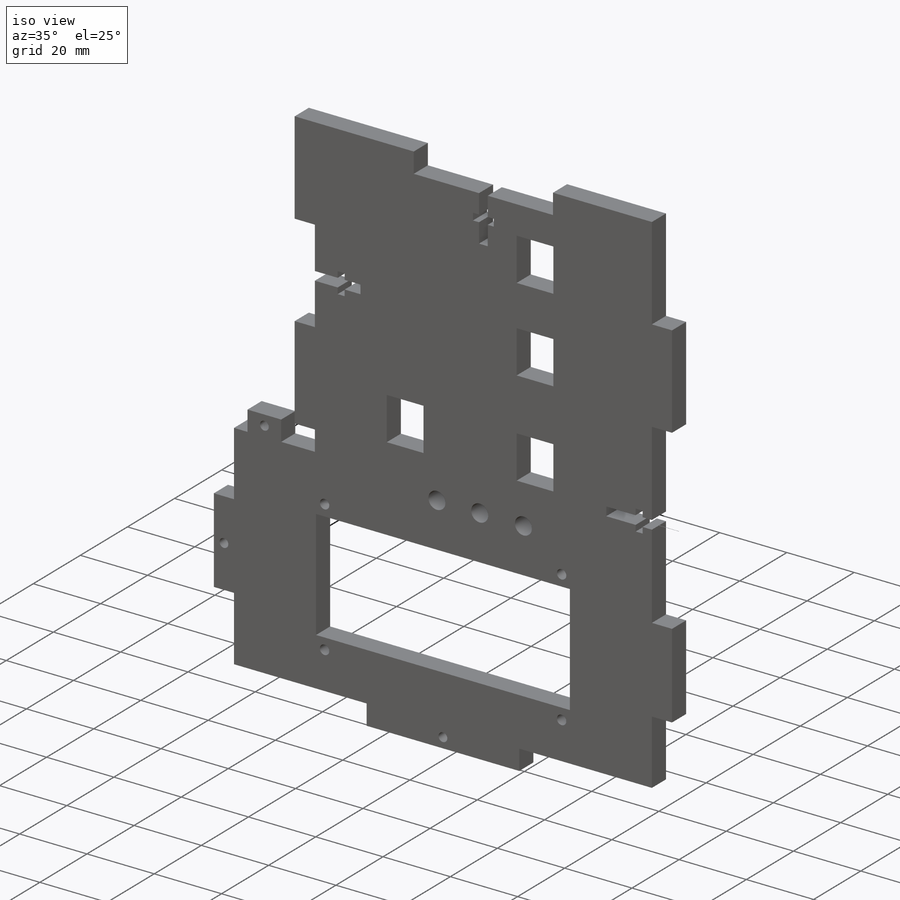
[diagram: iso view]
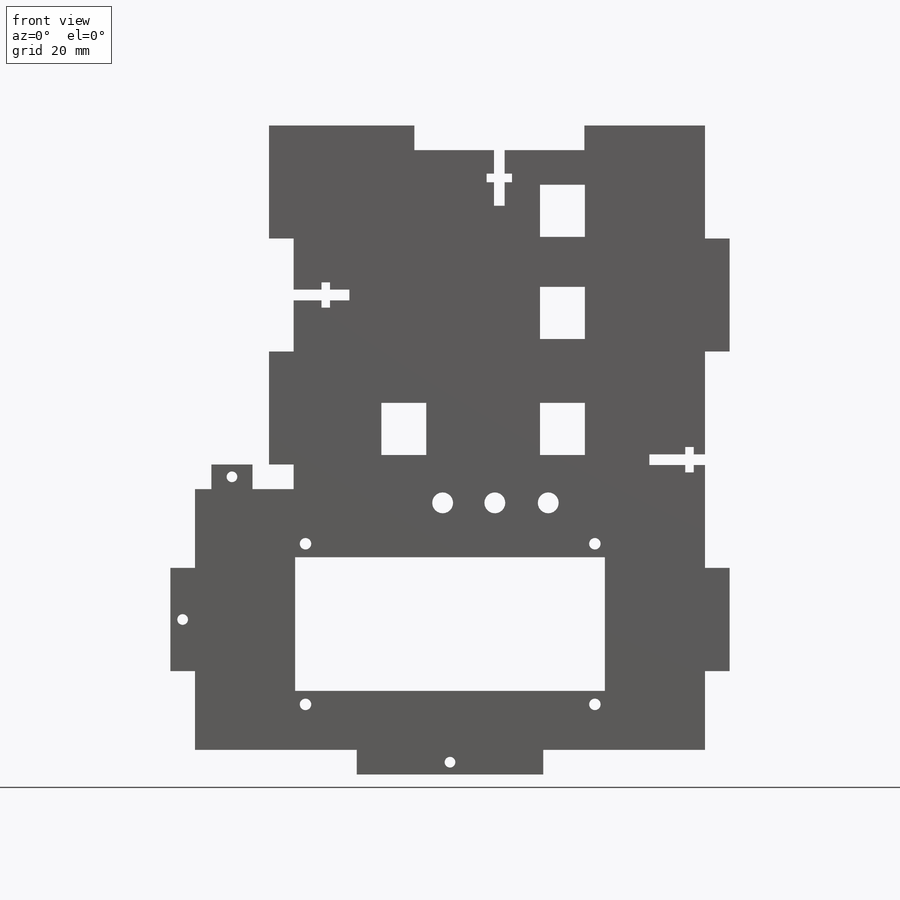
[diagram: front view]
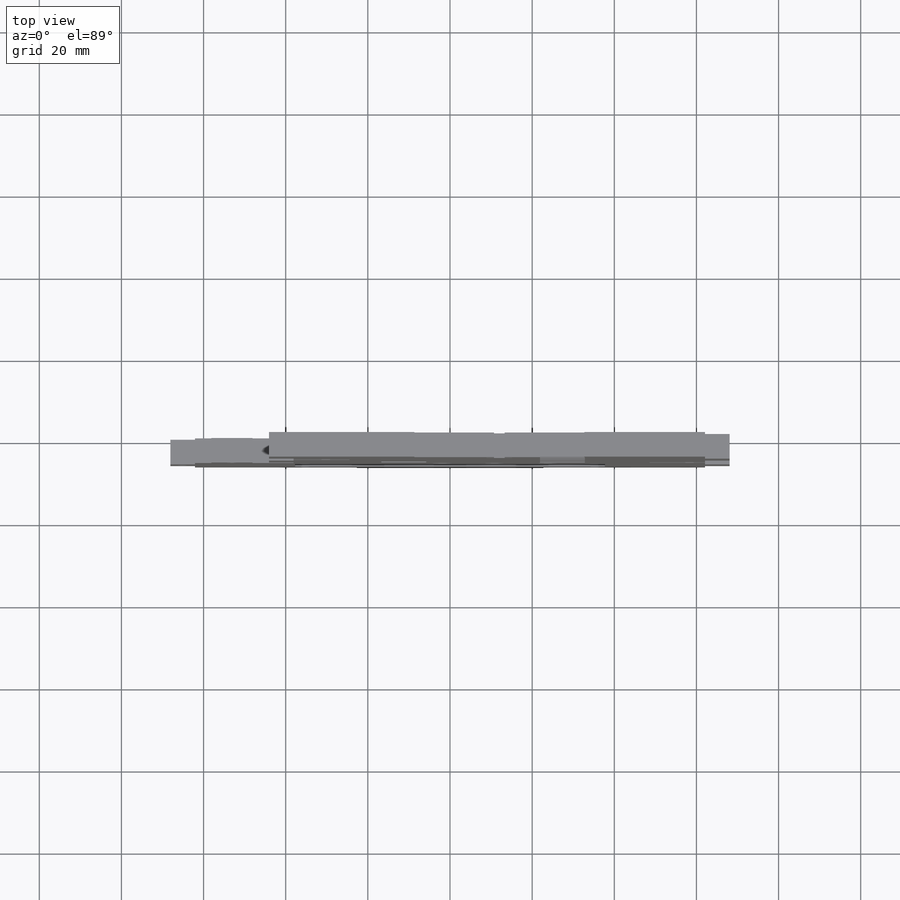
[diagram: top view]
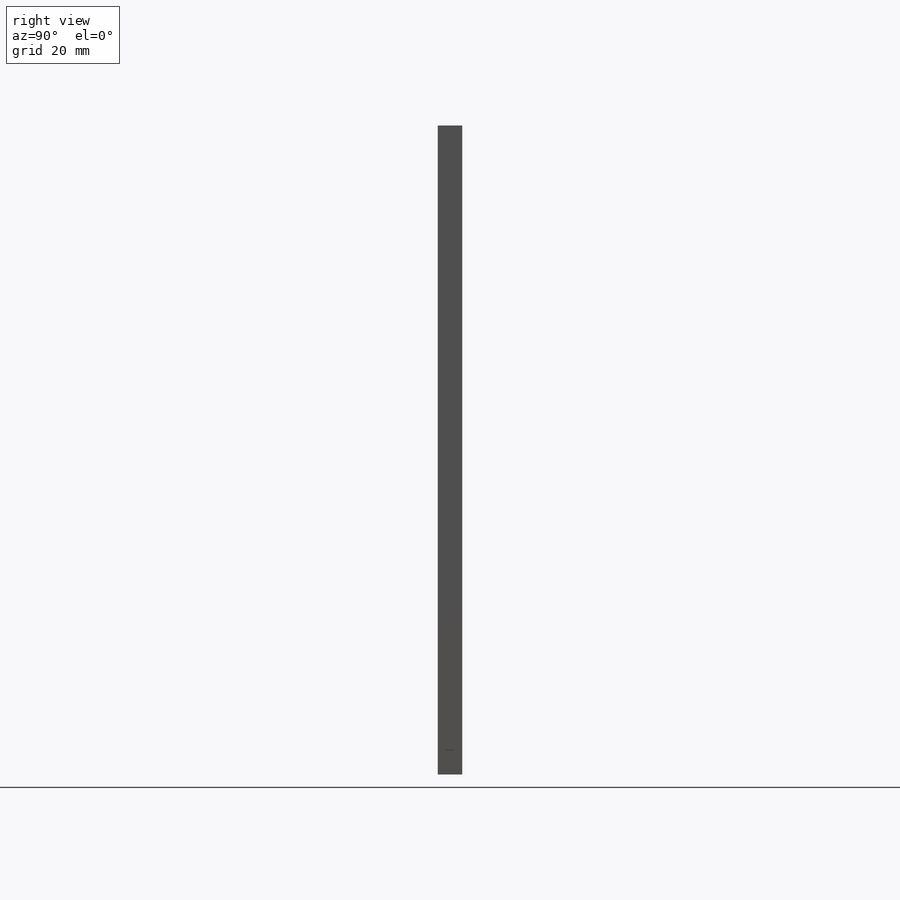
[diagram: right view]
SOLIDWORKS PART (.sldprt)
format: sldprt  version: not decoded by parser v0  size: 1,233,920 bytes
history: native  units: mm
features: sketch x9, cut_extrude x7, extrude x6, material x1 (+11 scaffold rows collapsed)
feature tree (34):
  scaffold x11  (default folders/planes/origin — collapsed)
  material  "Mahogany"
  sketch  "Sketch1"  dims[D1=129.9464mm D2=83.9724mm]
  extrude  "Boss-Extrude1"  Depth=5.7912mm
  sketch  "Sketch7"  dims[D1=82.55mm D2=106.1212mm D3=0.0mm]
  extrude  "Boss-Extrude2"  Depth=5.7912mm
  sketch  "Sketch12"  dims[c1.D5=2.6035mm c1.D1=5.08mm c1.D2=~33.866667mm c1.D3=~33.866667mm c2.D1=5.7912mm c2.D2=~27.516667mm c2.D3=~27.516667mm c2.D4=2.9972mm]
  cut_extrude  "Cut-Extrude9"  [1 undecoded]
  sketch  "Sketch15"  dims[D1=5.7912mm D2=~35.373733mm D3=~35.373733mm]
  cut_extrude  "Cut-Extrude12"  [1 undecoded]
  sketch  "Sketch18"  dims[D5=2.794mm D7=2.794mm D1=15.24mm D2=30.48mm D3=75.438mm D4=32.512mm D6=3.302mm D8=70.4596mm D9=2.54mm]
  cut_extrude  "Cut-Extrude15"  [1 undecoded]
  sketch  "Sketch19"  dims[D1=2.6035mm D2=19.558mm D3=~81.37144mm]
  cut_extrude  "Cut-Extrude16"  [1 undecoded]
  sketch  "Sketch20"  dims[D1=2.0828mm D2=6.1722mm D3=~1.78435mm]
  cut_extrude  "Cut-Extrude17"  [1 undecoded]
  extrude  "Short Side<1>@Box1"  [1 undecoded]
  extrude  "Top<1>@Box1"  [1 undecoded]
  extrude  "Short Side 2<1>@Box1"  [1 undecoded]
  extrude  "Low Bottom<1>@Box1"  [1 undecoded]
  sketch  "Sketch21"  dims[D1=5.08mm D2=5.08mm D3=5.08mm]
  cut_extrude  "Cut-Extrude18"  [1 undecoded]
  sketch  "Sketch22"  dims[c1.D17=11.7348mm c1.D18=11.7348mm c1.D19=11.7348mm c1.D20=11.7348mm c1.D1=12.7mm c1.D2=10.922mm c1.D3=18.3388mm c1.D4=17.4498mm c1.D5=12.7mm c1.D6=10.922mm c1.D7=18.3388mm c1.D8=17.4498mm c1.D9=12.7mm c1.D10=10.922mm c1.D11=18.3388mm c1.D12=17.4498mm c1.D13=12.7mm c1.D14=10.922mm c1.D15=18.3388mm c1.D16=17.4498mm c2.D17=12.7mm c2.D18=10.922mm c2.D19=18.3388mm c2.D20=17.4498mm c2.D21=12.7mm c2.D22=10.922mm c2.D23=18.3388mm c2.D24=17.4498mm c2.D25=12.7mm c2.D26=10.922mm c2.D27=18.3388mm c2.D28=17.4498mm c2.D29=12.7mm c2.D30=10.922mm c2.D31=18.3388mm c2.D32=17.4498mm]
  cut_extrude  "Cut-Extrude19"  [1 undecoded]
decode coverage: 11 of 22 modeling features carry decoded parameters
note: ~ marks probable driven/reference dimensions
note: 11 parameter values undecoded
summary: no parameter record found for 11 features
note: suppression state not decoded; provenance and decode notes live in map.json
